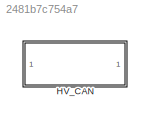
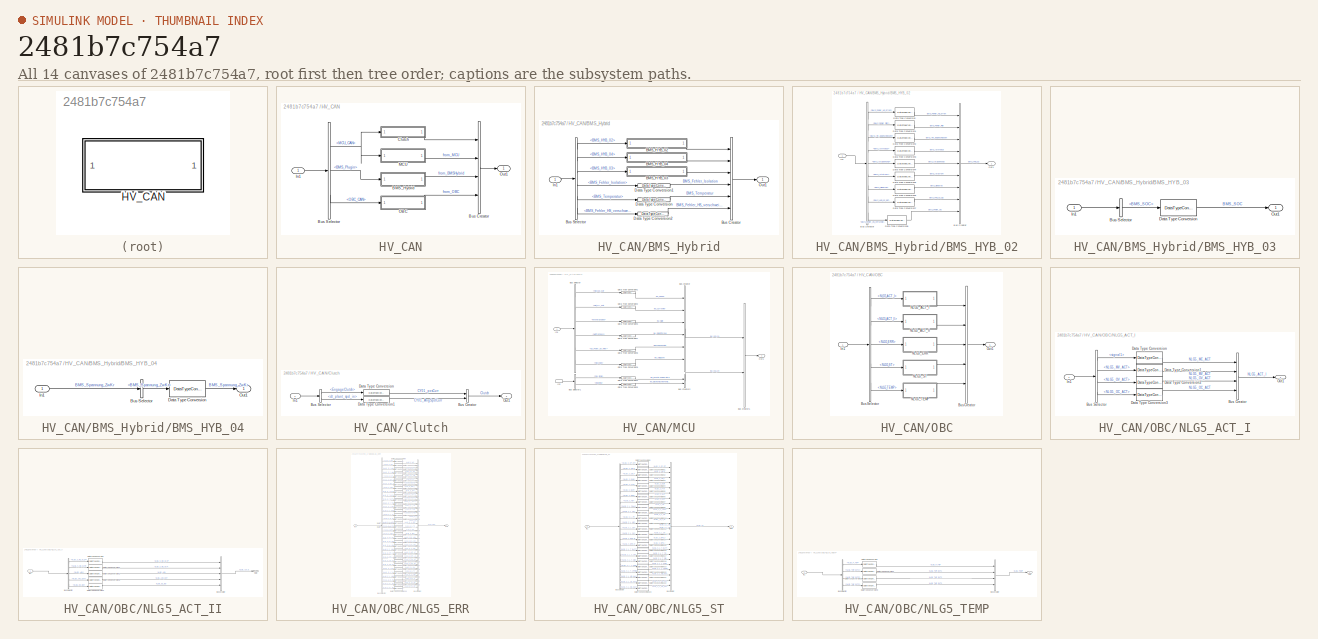
[diagram: thumbnail index - all 14 canvases of the model, root first then tree order]
MODEL slx_2481b7c754a7
KIND library
CONFIG AbsTol = auto
CONFIG EnableMultiTasking = off
CONFIG FixedStep = auto
CONFIG MaxStep = auto
CONFIG MinStep = auto
CONFIG RelTol = 1e-3
CONFIG SampleTimeConstraint = Unconstrained
CONFIG Solver = VariableStepAuto
CONFIG SolverName = VariableStepAuto
CONFIG StartTime = 0.0
CONFIG StopTime = 10.0
BLOCK [SubSystem] HV_CAN
  Ports = [1, 1]
  RequestExecContextInheritance = off
  Variant = off
BLOCK [SubSystem] HV_CAN/BMS_Hybrid
  Ports = [1, 1]
  RequestExecContextInheritance = off
  Variant = off
BLOCK [SubSystem] HV_CAN/BMS_Hybrid/BMS_HYB_02
  Ports = [1, 1]
  RequestExecContextInheritance = off
  Variant = off
BLOCK [BusCreator] HV_CAN/BMS_Hybrid/BMS_HYB_02/Bus Creator
  DisplayOption = bar
  InheritFromInputs = on
  Inputs = 9
  Ports = [9, 1]
BLOCK [BusSelector] HV_CAN/BMS_Hybrid/BMS_HYB_02/Bus Selector
  OutputAsBus = off
  OutputSignals = BMS_Fehler_HS_offen,BMS_Fehler_Pilot,BMS_Init_abgeschlossen,BMS_IstModus,BMS_IstSpannung,BMS_IstStrom,BMS_SleepInd,BMS_HYB_02_BZ,BMS_Fehler_HS_verschweisst
  Ports = [1, 9]
BLOCK [DataTypeConversion] HV_CAN/BMS_Hybrid/BMS_HYB_02/Data Type Conversion
  RndMeth = Floor
  SaturateOnIntegerOverflow = off
BLOCK [DataTypeConversion] HV_CAN/BMS_Hybrid/BMS_HYB_02/Data Type Conversion1
  RndMeth = Floor
  SaturateOnIntegerOverflow = off
BLOCK [DataTypeConversion] HV_CAN/BMS_Hybrid/BMS_HYB_02/Data Type Conversion2
  RndMeth = Floor
  SaturateOnIntegerOverflow = off
BLOCK [DataTypeConversion] HV_CAN/BMS_Hybrid/BMS_HYB_02/Data Type Conversion3
  RndMeth = Floor
  SaturateOnIntegerOverflow = off
BLOCK [DataTypeConversion] HV_CAN/BMS_Hybrid/BMS_HYB_02/Data Type Conversion4
  RndMeth = Floor
  SaturateOnIntegerOverflow = off
BLOCK [DataTypeConversion] HV_CAN/BMS_Hybrid/BMS_HYB_02/Data Type Conversion5
  RndMeth = Floor
  SaturateOnIntegerOverflow = off
BLOCK [DataTypeConversion] HV_CAN/BMS_Hybrid/BMS_HYB_02/Data Type Conversion6
  RndMeth = Floor
  SaturateOnIntegerOverflow = off
BLOCK [DataTypeConversion] HV_CAN/BMS_Hybrid/BMS_HYB_02/Data Type Conversion7
  RndMeth = Floor
  SaturateOnIntegerOverflow = off
BLOCK [DataTypeConversion] HV_CAN/BMS_Hybrid/BMS_HYB_02/Data Type Conversion8
  RndMeth = Floor
  SaturateOnIntegerOverflow = off
BLOCK [Inport] HV_CAN/BMS_Hybrid/BMS_HYB_02/In1
  IconDisplay = Port number
BLOCK [Outport] HV_CAN/BMS_Hybrid/BMS_HYB_02/Out1
  IconDisplay = Port number
BLOCK [SubSystem] HV_CAN/BMS_Hybrid/BMS_HYB_03
  Ports = [1, 1]
  RequestExecContextInheritance = off
  Variant = off
BLOCK [BusSelector] HV_CAN/BMS_Hybrid/BMS_HYB_03/Bus Selector
  OutputAsBus = off
  OutputSignals = BMS_SOC
  Ports = [1, 1]
BLOCK [DataTypeConversion] HV_CAN/BMS_Hybrid/BMS_HYB_03/Data Type Conversion
  RndMeth = Floor
  SaturateOnIntegerOverflow = off
BLOCK [Inport] HV_CAN/BMS_Hybrid/BMS_HYB_03/In1
  IconDisplay = Port number
BLOCK [Outport] HV_CAN/BMS_Hybrid/BMS_HYB_03/Out1
  IconDisplay = Port number
BLOCK [SubSystem] HV_CAN/BMS_Hybrid/BMS_HYB_04
  Ports = [1, 1]
  RequestExecContextInheritance = off
  Variant = off
BLOCK [BusSelector] HV_CAN/BMS_Hybrid/BMS_HYB_04/Bus Selector
  OutputAsBus = off
  OutputSignals = BMS_Spannung_ZwKr
  Ports = [1, 1]
BLOCK [DataTypeConversion] HV_CAN/BMS_Hybrid/BMS_HYB_04/Data Type Conversion
  RndMeth = Floor
  SaturateOnIntegerOverflow = off
BLOCK [Inport] HV_CAN/BMS_Hybrid/BMS_HYB_04/In1
  IconDisplay = Port number
BLOCK [Outport] HV_CAN/BMS_Hybrid/BMS_HYB_04/Out1
  IconDisplay = Port number
BLOCK [BusCreator] HV_CAN/BMS_Hybrid/Bus Creator
  DisplayOption = bar
  InheritFromInputs = on
  Inputs = 6
  Ports = [6, 1]
BLOCK [BusSelector] HV_CAN/BMS_Hybrid/Bus Selector
  OutputAsBus = off
  OutputSignals = BMS_HYB_02,BMS_HYB_04,BMS_HYB_03,BMS_HYB_02.BMS_Fehler_Isolation,BMS_HYB_06.BMS_Temperatur,BMS_HYB_02.BMS_Fehler_HS_verschweisst
  Ports = [1, 6]
BLOCK [DataTypeConversion] HV_CAN/BMS_Hybrid/Data Type Conversion
  RndMeth = Floor
  SaturateOnIntegerOverflow = off
BLOCK [DataTypeConversion] HV_CAN/BMS_Hybrid/Data Type Conversion1
  RndMeth = Floor
  SaturateOnIntegerOverflow = off
BLOCK [DataTypeConversion] HV_CAN/BMS_Hybrid/Data Type Conversion2
  RndMeth = Floor
  SaturateOnIntegerOverflow = off
BLOCK [Inport] HV_CAN/BMS_Hybrid/In1
  IconDisplay = Port number
BLOCK [Outport] HV_CAN/BMS_Hybrid/Out1
  IconDisplay = Port number
BLOCK [BusCreator] HV_CAN/Bus Creator
  DisplayOption = bar
  InheritFromInputs = on
  Inputs = 4
  Ports = [4, 1]
BLOCK [BusSelector] HV_CAN/Bus Selector
  OutputAsBus = off
  OutputSignals = MCU_CAN,BMS_CAN.BMS_Plugin,OBC_CAN
  Ports = [1, 3]
BLOCK [SubSystem] HV_CAN/Clutch
  Ports = [1, 1]
  RequestExecContextInheritance = off
  Variant = off
BLOCK [BusCreator] HV_CAN/Clutch/Bus Creator
  DisplayOption = bar
  InheritFromInputs = on
  Inputs = 2
  Ports = [2, 1]
BLOCK [BusSelector] HV_CAN/Clutch/Bus Selector
  OutputAsBus = off
  OutputSignals = MCU_to _Actuator.EngageClutch,Sensors_to_MCU.clt_plant_spd_in
  Ports = [1, 2]
BLOCK [DataTypeConversion] HV_CAN/Clutch/Data Type Conversion
  RndMeth = Floor
  SaturateOnIntegerOverflow = off
BLOCK [DataTypeConversion] HV_CAN/Clutch/Data Type Conversion1
  RndMeth = Floor
  SaturateOnIntegerOverflow = off
BLOCK [Inport] HV_CAN/Clutch/In1
  IconDisplay = Port number
BLOCK [Outport] HV_CAN/Clutch/Out1
  IconDisplay = Port number
BLOCK [Inport] HV_CAN/In1
  IconDisplay = Port number
BLOCK [SubSystem] HV_CAN/MCU
  Ports = [1, 1]
  RequestExecContextInheritance = off
  Variant = off
BLOCK [BusCreator] HV_CAN/MCU/Bus Creator
  DisplayOption = bar
  InheritFromInputs = on
  Inputs = 6
  Ports = [6, 1]
BLOCK [BusCreator] HV_CAN/MCU/Bus Creator1
  DisplayOption = bar
  InheritFromInputs = on
  Inputs = 2
  Ports = [2, 1]
BLOCK [BusCreator] HV_CAN/MCU/Bus Creator2
  DisplayOption = bar
  InheritFromInputs = on
  Inputs = 2
  Ports = [2, 1]
BLOCK [BusSelector] HV_CAN/MCU/Bus Selector
  OutputAsBus = off
  OutputSignals = Sensors_to_MCU.mot_spd_out,Sensors_to_MCU.mot_crr_out,MCU_to _Actuator.InverterEnabled,MCU_to _Actuator.MotTrqFdbck,MCU_to _Actuator.D3_Power_On_Timer,Sensors_to_MCU.mot_volt_in
  Ports = [1, 6]
BLOCK [BusSelector] HV_CAN/MCU/Bus Selector1
  OutputAsBus = off
  OutputSignals = Sensors_to_MCU.mcu_temp,Sensors_to_MCU.mot_temp
  Ports = [1, 2]
BLOCK [DataTypeConversion] HV_CAN/MCU/Data Type Conversion1
  RndMeth = Floor
  SaturateOnIntegerOverflow = off
BLOCK [DataTypeConversion] HV_CAN/MCU/Data Type Conversion2
  RndMeth = Floor
  SaturateOnIntegerOverflow = off
BLOCK [DataTypeConversion] HV_CAN/MCU/Data Type Conversion3
  RndMeth = Floor
  SaturateOnIntegerOverflow = off
BLOCK [DataTypeConversion] HV_CAN/MCU/Data Type Conversion4
  RndMeth = Floor
  SaturateOnIntegerOverflow = off
BLOCK [DataTypeConversion] HV_CAN/MCU/Data Type Conversion5
  RndMeth = Floor
  SaturateOnIntegerOverflow = off
BLOCK [DataTypeConversion] HV_CAN/MCU/Data Type Conversion7
  RndMeth = Floor
  SaturateOnIntegerOverflow = off
BLOCK [DataTypeConversion] HV_CAN/MCU/Data Type Conversion8
  RndMeth = Floor
  SaturateOnIntegerOverflow = off
BLOCK [DataTypeConversion] HV_CAN/MCU/Data Type Conversion9
  RndMeth = Floor
  SaturateOnIntegerOverflow = off
BLOCK [Inport] HV_CAN/MCU/In1
  IconDisplay = Port number
BLOCK [InportShadow] HV_CAN/MCU/In2
  IconDisplay = Port number
BLOCK [Outport] HV_CAN/MCU/Out1
  IconDisplay = Port number
BLOCK [SubSystem] HV_CAN/OBC
  Ports = [1, 1]
  RequestExecContextInheritance = off
  Variant = off
BLOCK [BusCreator] HV_CAN/OBC/Bus Creator
  DisplayOption = bar
  InheritFromInputs = on
  Inputs = 5
  Ports = [5, 1]
BLOCK [BusSelector] HV_CAN/OBC/Bus Selector
  OutputAsBus = off
  OutputSignals = NLG5_ACT_I,NLG5_ACT_II,NLG5_ERR,NLG5_ST,NLG5_TEMP
  Ports = [1, 5]
BLOCK [Inport] HV_CAN/OBC/In1
  IconDisplay = Port number
BLOCK [SubSystem] HV_CAN/OBC/NLG5_ACT_I
  Ports = [1, 1]
  RequestExecContextInheritance = off
  Variant = off
BLOCK [BusCreator] HV_CAN/OBC/NLG5_ACT_I/Bus Creator
  DisplayOption = bar
  InheritFromInputs = on
  Inputs = 4
  Ports = [4, 1]
BLOCK [BusSelector] HV_CAN/OBC/NLG5_ACT_I/Bus Selector
  OutputAsBus = off
  OutputSignals = signal1,NLG5_MV_ACT,NLG5_OV_ACT,NLG5_OC_ACT
  Ports = [1, 4]
BLOCK [DataTypeConversion] HV_CAN/OBC/NLG5_ACT_I/Data Type Conversion
  RndMeth = Floor
  SaturateOnIntegerOverflow = off
BLOCK [DataTypeConversion] HV_CAN/OBC/NLG5_ACT_I/Data Type Conversion1
  RndMeth = Floor
  SaturateOnIntegerOverflow = off
BLOCK [DataTypeConversion] HV_CAN/OBC/NLG5_ACT_I/Data Type Conversion2
  RndMeth = Floor
  SaturateOnIntegerOverflow = off
BLOCK [DataTypeConversion] HV_CAN/OBC/NLG5_ACT_I/Data Type Conversion3
  RndMeth = Floor
  SaturateOnIntegerOverflow = off
BLOCK [Inport] HV_CAN/OBC/NLG5_ACT_I/In1
  IconDisplay = Port number
BLOCK [Outport] HV_CAN/OBC/NLG5_ACT_I/Out1
  IconDisplay = Port number
BLOCK [SubSystem] HV_CAN/OBC/NLG5_ACT_II
  Ports = [1, 1]
  RequestExecContextInheritance = off
  Variant = off
BLOCK [BusCreator] HV_CAN/OBC/NLG5_ACT_II/Bus Creator
  DisplayOption = bar
  InheritFromInputs = on
  Inputs = 5
  Ports = [5, 1]
BLOCK [BusSelector] HV_CAN/OBC/NLG5_ACT_II/Bus Selector
  OutputAsBus = off
  OutputSignals = NLG5_S_MC_M_CP,NLG5_S_MC_M_PI,NLG5_ABV,NLG5_AHC_EXT,NLG5_OC_BO
  Ports = [1, 5]
BLOCK [DataTypeConversion] HV_CAN/OBC/NLG5_ACT_II/Data Type Conversion
  RndMeth = Floor
  SaturateOnIntegerOverflow = off
BLOCK [DataTypeConversion] HV_CAN/OBC/NLG5_ACT_II/Data Type Conversion1
  RndMeth = Floor
  SaturateOnIntegerOverflow = off
BLOCK [DataTypeConversion] HV_CAN/OBC/NLG5_ACT_II/Data Type Conversion2
  RndMeth = Floor
  SaturateOnIntegerOverflow = off
BLOCK [DataTypeConversion] HV_CAN/OBC/NLG5_ACT_II/Data Type Conversion3
  RndMeth = Floor
  SaturateOnIntegerOverflow = off
BLOCK [DataTypeConversion] HV_CAN/OBC/NLG5_ACT_II/Data Type Conversion4
  RndMeth = Floor
  SaturateOnIntegerOverflow = off
BLOCK [Inport] HV_CAN/OBC/NLG5_ACT_II/In1
  IconDisplay = Port number
BLOCK [Outport] HV_CAN/OBC/NLG5_ACT_II/Out1
  IconDisplay = Port number
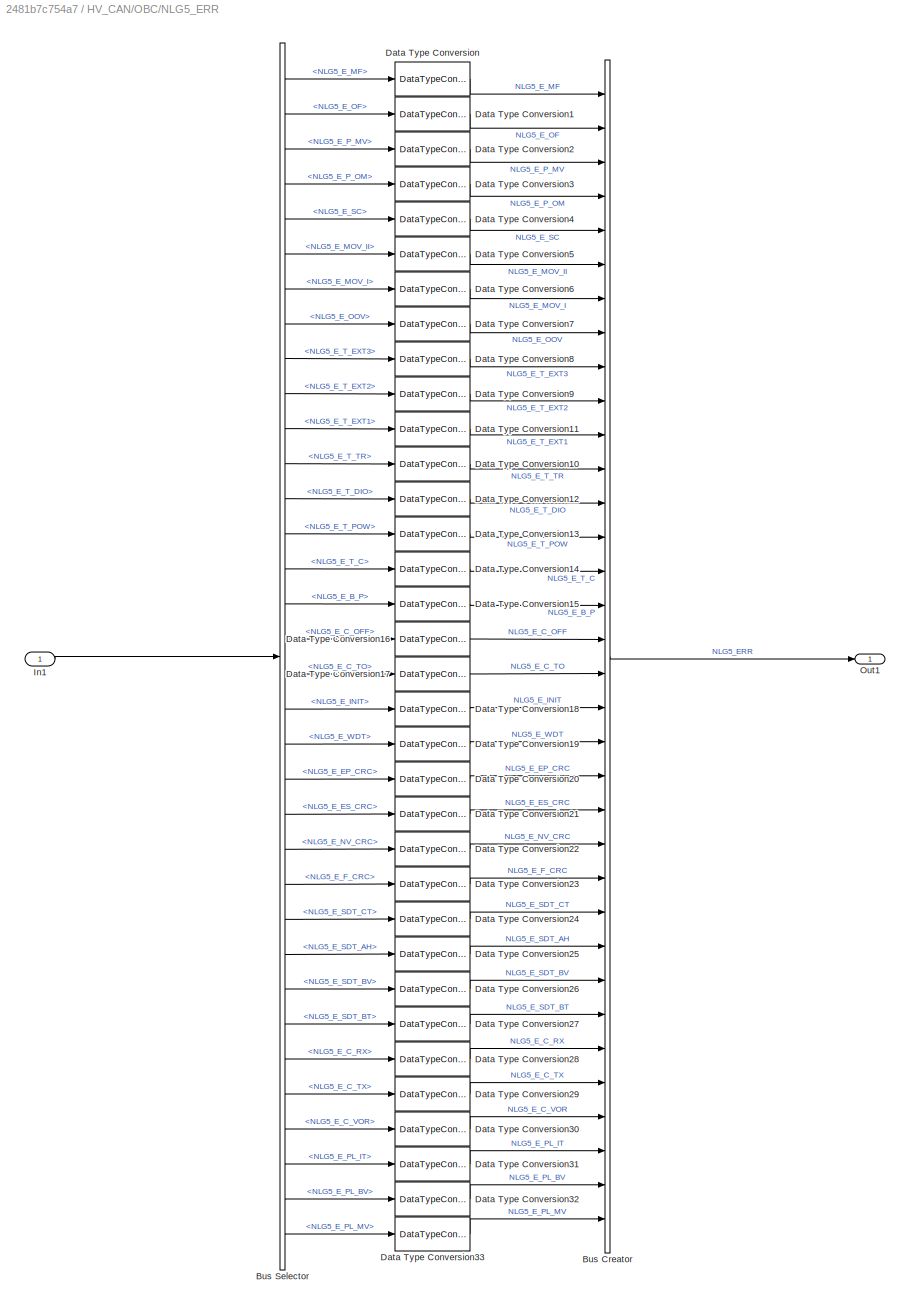
BLOCK [SubSystem] HV_CAN/OBC/NLG5_ERR
  Ports = [1, 1]
  RequestExecContextInheritance = off
  Variant = off
BLOCK [BusCreator] HV_CAN/OBC/NLG5_ERR/Bus Creator
  DisplayOption = bar
  InheritFromInputs = on
  Inputs = 34
  Ports = [34, 1]
BLOCK [BusSelector] HV_CAN/OBC/NLG5_ERR/Bus Selector
  OutputAsBus = off
  OutputSignals = NLG5_E_MF,NLG5_E_OF,NLG5_E_P_MV,NLG5_E_P_OM,NLG5_E_SC,NLG5_E_MOV_II,NLG5_E_MOV_I,NLG5_E_OOV,NLG5_E_T_EXT3,NLG5_E_T_EXT2,NLG5_E_T_EXT1,NLG5_E_T_TR,NLG5_E_T_DIO,NLG5_E_T_POW,NLG5_E_T_C,NLG5_E_B_P,NLG5_E_C_OFF,NLG5_E_C_TO,NLG5_E_INIT,NLG5_E_WDT,NLG5_E_EP_CRC,NLG5_E_ES_CRC,NLG5_E_NV_CRC,NLG5_E_F_CRC,NLG5_E_SDT_CT,NLG5_E_SDT_AH,NLG5_E_SDT_BV,NLG5_E_SDT_BT,NLG5_E_C_RX,NLG5_E_C_TX,NLG5_E_C_VOR,NLG5_E_PL_...<+28ch>
  Ports = [1, 34]
BLOCK [DataTypeConversion] HV_CAN/OBC/NLG5_ERR/Data Type Conversion
  RndMeth = Floor
  SaturateOnIntegerOverflow = off
BLOCK [DataTypeConversion] HV_CAN/OBC/NLG5_ERR/Data Type Conversion1
  RndMeth = Floor
  SaturateOnIntegerOverflow = off
BLOCK [DataTypeConversion] HV_CAN/OBC/NLG5_ERR/Data Type Conversion10
  RndMeth = Floor
  SaturateOnIntegerOverflow = off
BLOCK [DataTypeConversion] HV_CAN/OBC/NLG5_ERR/Data Type Conversion11
  RndMeth = Floor
  SaturateOnIntegerOverflow = off
BLOCK [DataTypeConversion] HV_CAN/OBC/NLG5_ERR/Data Type Conversion12
  RndMeth = Floor
  SaturateOnIntegerOverflow = off
BLOCK [DataTypeConversion] HV_CAN/OBC/NLG5_ERR/Data Type Conversion13
  RndMeth = Floor
  SaturateOnIntegerOverflow = off
BLOCK [DataTypeConversion] HV_CAN/OBC/NLG5_ERR/Data Type Conversion14
  RndMeth = Floor
  SaturateOnIntegerOverflow = off
BLOCK [DataTypeConversion] HV_CAN/OBC/NLG5_ERR/Data Type Conversion15
  RndMeth = Floor
  SaturateOnIntegerOverflow = off
BLOCK [DataTypeConversion] HV_CAN/OBC/NLG5_ERR/Data Type Conversion16
  RndMeth = Floor
  SaturateOnIntegerOverflow = off
BLOCK [DataTypeConversion] HV_CAN/OBC/NLG5_ERR/Data Type Conversion17
  RndMeth = Floor
  SaturateOnIntegerOverflow = off
BLOCK [DataTypeConversion] HV_CAN/OBC/NLG5_ERR/Data Type Conversion18
  RndMeth = Floor
  SaturateOnIntegerOverflow = off
BLOCK [DataTypeConversion] HV_CAN/OBC/NLG5_ERR/Data Type Conversion19
  RndMeth = Floor
  SaturateOnIntegerOverflow = off
BLOCK [DataTypeConversion] HV_CAN/OBC/NLG5_ERR/Data Type Conversion2
  RndMeth = Floor
  SaturateOnIntegerOverflow = off
BLOCK [DataTypeConversion] HV_CAN/OBC/NLG5_ERR/Data Type Conversion20
  RndMeth = Floor
  SaturateOnIntegerOverflow = off
BLOCK [DataTypeConversion] HV_CAN/OBC/NLG5_ERR/Data Type Conversion21
  RndMeth = Floor
  SaturateOnIntegerOverflow = off
BLOCK [DataTypeConversion] HV_CAN/OBC/NLG5_ERR/Data Type Conversion22
  RndMeth = Floor
  SaturateOnIntegerOverflow = off
BLOCK [DataTypeConversion] HV_CAN/OBC/NLG5_ERR/Data Type Conversion23
  RndMeth = Floor
  SaturateOnIntegerOverflow = off
BLOCK [DataTypeConversion] HV_CAN/OBC/NLG5_ERR/Data Type Conversion24
  RndMeth = Floor
  SaturateOnIntegerOverflow = off
BLOCK [DataTypeConversion] HV_CAN/OBC/NLG5_ERR/Data Type Conversion25
  RndMeth = Floor
  SaturateOnIntegerOverflow = off
BLOCK [DataTypeConversion] HV_CAN/OBC/NLG5_ERR/Data Type Conversion26
  RndMeth = Floor
  SaturateOnIntegerOverflow = off
BLOCK [DataTypeConversion] HV_CAN/OBC/NLG5_ERR/Data Type Conversion27
  RndMeth = Floor
  SaturateOnIntegerOverflow = off
BLOCK [DataTypeConversion] HV_CAN/OBC/NLG5_ERR/Data Type Conversion28
  RndMeth = Floor
  SaturateOnIntegerOverflow = off
BLOCK [DataTypeConversion] HV_CAN/OBC/NLG5_ERR/Data Type Conversion29
  RndMeth = Floor
  SaturateOnIntegerOverflow = off
BLOCK [DataTypeConversion] HV_CAN/OBC/NLG5_ERR/Data Type Conversion3
  RndMeth = Floor
  SaturateOnIntegerOverflow = off
BLOCK [DataTypeConversion] HV_CAN/OBC/NLG5_ERR/Data Type Conversion30
  RndMeth = Floor
  SaturateOnIntegerOverflow = off
BLOCK [DataTypeConversion] HV_CAN/OBC/NLG5_ERR/Data Type Conversion31
  RndMeth = Floor
  SaturateOnIntegerOverflow = off
BLOCK [DataTypeConversion] HV_CAN/OBC/NLG5_ERR/Data Type Conversion32
  RndMeth = Floor
  SaturateOnIntegerOverflow = off
BLOCK [DataTypeConversion] HV_CAN/OBC/NLG5_ERR/Data Type Conversion33
  RndMeth = Floor
  SaturateOnIntegerOverflow = off
BLOCK [DataTypeConversion] HV_CAN/OBC/NLG5_ERR/Data Type Conversion4
  RndMeth = Floor
  SaturateOnIntegerOverflow = off
BLOCK [DataTypeConversion] HV_CAN/OBC/NLG5_ERR/Data Type Conversion5
  RndMeth = Floor
  SaturateOnIntegerOverflow = off
BLOCK [DataTypeConversion] HV_CAN/OBC/NLG5_ERR/Data Type Conversion6
  RndMeth = Floor
  SaturateOnIntegerOverflow = off
BLOCK [DataTypeConversion] HV_CAN/OBC/NLG5_ERR/Data Type Conversion7
  RndMeth = Floor
  SaturateOnIntegerOverflow = off
BLOCK [DataTypeConversion] HV_CAN/OBC/NLG5_ERR/Data Type Conversion8
  RndMeth = Floor
  SaturateOnIntegerOverflow = off
BLOCK [DataTypeConversion] HV_CAN/OBC/NLG5_ERR/Data Type Conversion9
  RndMeth = Floor
  SaturateOnIntegerOverflow = off
BLOCK [Inport] HV_CAN/OBC/NLG5_ERR/In1
  IconDisplay = Port number
BLOCK [Outport] HV_CAN/OBC/NLG5_ERR/Out1
  IconDisplay = Port number
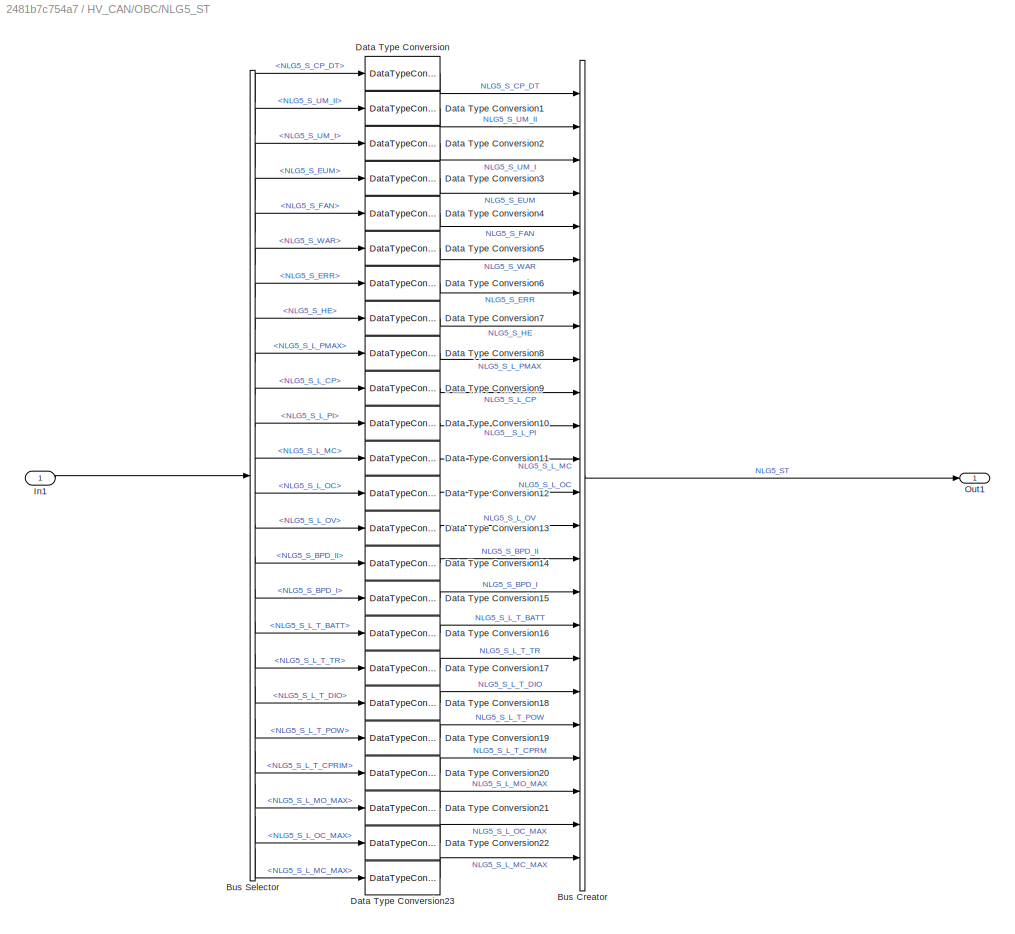
BLOCK [SubSystem] HV_CAN/OBC/NLG5_ST
  Ports = [1, 1]
  RequestExecContextInheritance = off
  Variant = off
BLOCK [BusCreator] HV_CAN/OBC/NLG5_ST/Bus Creator
  DisplayOption = bar
  InheritFromInputs = on
  Inputs = 24
  Ports = [24, 1]
BLOCK [BusSelector] HV_CAN/OBC/NLG5_ST/Bus Selector
  OutputAsBus = off
  OutputSignals = NLG5_S_CP_DT,NLG5_S_UM_II,NLG5_S_UM_I,NLG5_S_EUM,NLG5_S_FAN,NLG5_S_WAR,NLG5_S_ERR,NLG5_S_HE,NLG5_S_L_PMAX,NLG5_S_L_CP,NLG5_S_L_PI,NLG5_S_L_MC,NLG5_S_L_OC,NLG5_S_L_OV,NLG5_S_BPD_II,NLG5_S_BPD_I,NLG5_S_L_T_BATT,NLG5_S_L_T_TR,NLG5_S_L_T_DIO,NLG5_S_L_T_POW,NLG5_S_L_T_CPRIM,NLG5_S_L_MO_MAX,NLG5_S_L_OC_MAX,NLG5_S_L_MC_MAX
  Ports = [1, 24]
BLOCK [DataTypeConversion] HV_CAN/OBC/NLG5_ST/Data Type Conversion
  RndMeth = Floor
  SaturateOnIntegerOverflow = off
BLOCK [DataTypeConversion] HV_CAN/OBC/NLG5_ST/Data Type Conversion1
  RndMeth = Floor
  SaturateOnIntegerOverflow = off
BLOCK [DataTypeConversion] HV_CAN/OBC/NLG5_ST/Data Type Conversion10
  RndMeth = Floor
  SaturateOnIntegerOverflow = off
BLOCK [DataTypeConversion] HV_CAN/OBC/NLG5_ST/Data Type Conversion11
  RndMeth = Floor
  SaturateOnIntegerOverflow = off
BLOCK [DataTypeConversion] HV_CAN/OBC/NLG5_ST/Data Type Conversion12
  RndMeth = Floor
  SaturateOnIntegerOverflow = off
BLOCK [DataTypeConversion] HV_CAN/OBC/NLG5_ST/Data Type Conversion13
  RndMeth = Floor
  SaturateOnIntegerOverflow = off
BLOCK [DataTypeConversion] HV_CAN/OBC/NLG5_ST/Data Type Conversion14
  RndMeth = Floor
  SaturateOnIntegerOverflow = off
BLOCK [DataTypeConversion] HV_CAN/OBC/NLG5_ST/Data Type Conversion15
  RndMeth = Floor
  SaturateOnIntegerOverflow = off
BLOCK [DataTypeConversion] HV_CAN/OBC/NLG5_ST/Data Type Conversion16
  RndMeth = Floor
  SaturateOnIntegerOverflow = off
BLOCK [DataTypeConversion] HV_CAN/OBC/NLG5_ST/Data Type Conversion17
  RndMeth = Floor
  SaturateOnIntegerOverflow = off
BLOCK [DataTypeConversion] HV_CAN/OBC/NLG5_ST/Data Type Conversion18
  RndMeth = Floor
  SaturateOnIntegerOverflow = off
BLOCK [DataTypeConversion] HV_CAN/OBC/NLG5_ST/Data Type Conversion19
  RndMeth = Floor
  SaturateOnIntegerOverflow = off
BLOCK [DataTypeConversion] HV_CAN/OBC/NLG5_ST/Data Type Conversion2
  RndMeth = Floor
  SaturateOnIntegerOverflow = off
BLOCK [DataTypeConversion] HV_CAN/OBC/NLG5_ST/Data Type Conversion20
  RndMeth = Floor
  SaturateOnIntegerOverflow = off
BLOCK [DataTypeConversion] HV_CAN/OBC/NLG5_ST/Data Type Conversion21
  RndMeth = Floor
  SaturateOnIntegerOverflow = off
BLOCK [DataTypeConversion] HV_CAN/OBC/NLG5_ST/Data Type Conversion22
  RndMeth = Floor
  SaturateOnIntegerOverflow = off
BLOCK [DataTypeConversion] HV_CAN/OBC/NLG5_ST/Data Type Conversion23
  RndMeth = Floor
  SaturateOnIntegerOverflow = off
BLOCK [DataTypeConversion] HV_CAN/OBC/NLG5_ST/Data Type Conversion3
  RndMeth = Floor
  SaturateOnIntegerOverflow = off
BLOCK [DataTypeConversion] HV_CAN/OBC/NLG5_ST/Data Type Conversion4
  RndMeth = Floor
  SaturateOnIntegerOverflow = off
BLOCK [DataTypeConversion] HV_CAN/OBC/NLG5_ST/Data Type Conversion5
  RndMeth = Floor
  SaturateOnIntegerOverflow = off
BLOCK [DataTypeConversion] HV_CAN/OBC/NLG5_ST/Data Type Conversion6
  RndMeth = Floor
  SaturateOnIntegerOverflow = off
BLOCK [DataTypeConversion] HV_CAN/OBC/NLG5_ST/Data Type Conversion7
  RndMeth = Floor
  SaturateOnIntegerOverflow = off
BLOCK [DataTypeConversion] HV_CAN/OBC/NLG5_ST/Data Type Conversion8
  RndMeth = Floor
  SaturateOnIntegerOverflow = off
BLOCK [DataTypeConversion] HV_CAN/OBC/NLG5_ST/Data Type Conversion9
  RndMeth = Floor
  SaturateOnIntegerOverflow = off
BLOCK [Inport] HV_CAN/OBC/NLG5_ST/In1
  IconDisplay = Port number
BLOCK [Outport] HV_CAN/OBC/NLG5_ST/Out1
  IconDisplay = Port number
BLOCK [SubSystem] HV_CAN/OBC/NLG5_TEMP
  Ports = [1, 1]
  RequestExecContextInheritance = off
  Variant = off
BLOCK [BusCreator] HV_CAN/OBC/NLG5_TEMP/Bus Creator
  DisplayOption = bar
  InheritFromInputs = on
  Inputs = 4
  Ports = [4, 1]
BLOCK [BusSelector] HV_CAN/OBC/NLG5_TEMP/Bus Selector
  OutputAsBus = off
  OutputSignals = NLG5_P_TMP,NLG5_TMP_EXT1,NLG5_TMP_EXT2,NLG5_TMP_EXT3
  Ports = [1, 4]
BLOCK [DataTypeConversion] HV_CAN/OBC/NLG5_TEMP/Data Type Conversion
  RndMeth = Floor
  SaturateOnIntegerOverflow = off
BLOCK [DataTypeConversion] HV_CAN/OBC/NLG5_TEMP/Data Type Conversion1
  RndMeth = Floor
  SaturateOnIntegerOverflow = off
BLOCK [DataTypeConversion] HV_CAN/OBC/NLG5_TEMP/Data Type Conversion2
  RndMeth = Floor
  SaturateOnIntegerOverflow = off
BLOCK [DataTypeConversion] HV_CAN/OBC/NLG5_TEMP/Data Type Conversion3
  RndMeth = Floor
  SaturateOnIntegerOverflow = off
BLOCK [Inport] HV_CAN/OBC/NLG5_TEMP/In1
  IconDisplay = Port number
BLOCK [Outport] HV_CAN/OBC/NLG5_TEMP/Out1
  IconDisplay = Port number
BLOCK [Outport] HV_CAN/OBC/Out1
  IconDisplay = Port number
BLOCK [Outport] HV_CAN/Out1
  IconDisplay = Port number
LINE HV_CAN/BMS_Hybrid/BMS_HYB_02/Bus Creator:1 -> HV_CAN/BMS_Hybrid/BMS_HYB_02/Out1:1
LINE HV_CAN/BMS_Hybrid/BMS_HYB_02/Bus Selector:1 -> HV_CAN/BMS_Hybrid/BMS_HYB_02/Data Type Conversion:1
LINE HV_CAN/BMS_Hybrid/BMS_HYB_02/Bus Selector:2 -> HV_CAN/BMS_Hybrid/BMS_HYB_02/Data Type Conversion1:1
LINE HV_CAN/BMS_Hybrid/BMS_HYB_02/Bus Selector:3 -> HV_CAN/BMS_Hybrid/BMS_HYB_02/Data Type Conversion2:1
LINE HV_CAN/BMS_Hybrid/BMS_HYB_02/Bus Selector:4 -> HV_CAN/BMS_Hybrid/BMS_HYB_02/Data Type Conversion3:1
LINE HV_CAN/BMS_Hybrid/BMS_HYB_02/Bus Selector:5 -> HV_CAN/BMS_Hybrid/BMS_HYB_02/Data Type Conversion4:1
LINE HV_CAN/BMS_Hybrid/BMS_HYB_02/Bus Selector:6 -> HV_CAN/BMS_Hybrid/BMS_HYB_02/Data Type Conversion5:1
LINE HV_CAN/BMS_Hybrid/BMS_HYB_02/Bus Selector:7 -> HV_CAN/BMS_Hybrid/BMS_HYB_02/Data Type Conversion6:1
LINE HV_CAN/BMS_Hybrid/BMS_HYB_02/Bus Selector:8 -> HV_CAN/BMS_Hybrid/BMS_HYB_02/Data Type Conversion7:1
LINE HV_CAN/BMS_Hybrid/BMS_HYB_02/Bus Selector:9 -> HV_CAN/BMS_Hybrid/BMS_HYB_02/Data Type Conversion8:1
LINE HV_CAN/BMS_Hybrid/BMS_HYB_02/Data Type Conversion1:1 -> HV_CAN/BMS_Hybrid/BMS_HYB_02/Bus Creator:2
LINE HV_CAN/BMS_Hybrid/BMS_HYB_02/Data Type Conversion2:1 -> HV_CAN/BMS_Hybrid/BMS_HYB_02/Bus Creator:3
LINE HV_CAN/BMS_Hybrid/BMS_HYB_02/Data Type Conversion3:1 -> HV_CAN/BMS_Hybrid/BMS_HYB_02/Bus Creator:4
LINE HV_CAN/BMS_Hybrid/BMS_HYB_02/Data Type Conversion4:1 -> HV_CAN/BMS_Hybrid/BMS_HYB_02/Bus Creator:5
LINE HV_CAN/BMS_Hybrid/BMS_HYB_02/Data Type Conversion5:1 -> HV_CAN/BMS_Hybrid/BMS_HYB_02/Bus Creator:6
LINE HV_CAN/BMS_Hybrid/BMS_HYB_02/Data Type Conversion6:1 -> HV_CAN/BMS_Hybrid/BMS_HYB_02/Bus Creator:7
LINE HV_CAN/BMS_Hybrid/BMS_HYB_02/Data Type Conversion7:1 -> HV_CAN/BMS_Hybrid/BMS_HYB_02/Bus Creator:8
LINE HV_CAN/BMS_Hybrid/BMS_HYB_02/Data Type Conversion8:1 -> HV_CAN/BMS_Hybrid/BMS_HYB_02/Bus Creator:9
LINE HV_CAN/BMS_Hybrid/BMS_HYB_02/Data Type Conversion:1 -> HV_CAN/BMS_Hybrid/BMS_HYB_02/Bus Creator:1
LINE HV_CAN/BMS_Hybrid/BMS_HYB_02/In1:1 -> HV_CAN/BMS_Hybrid/BMS_HYB_02/Bus Selector:1
LINE HV_CAN/BMS_Hybrid/BMS_HYB_02:1 -> HV_CAN/BMS_Hybrid/Bus Creator:1
LINE HV_CAN/BMS_Hybrid/BMS_HYB_03/Bus Selector:1 -> HV_CAN/BMS_Hybrid/BMS_HYB_03/Data Type Conversion:1
LINE HV_CAN/BMS_Hybrid/BMS_HYB_03/Data Type Conversion:1 -> HV_CAN/BMS_Hybrid/BMS_HYB_03/Out1:1
LINE HV_CAN/BMS_Hybrid/BMS_HYB_03/In1:1 -> HV_CAN/BMS_Hybrid/BMS_HYB_03/Bus Selector:1
LINE HV_CAN/BMS_Hybrid/BMS_HYB_03:1 -> HV_CAN/BMS_Hybrid/Bus Creator:3
LINE HV_CAN/BMS_Hybrid/BMS_HYB_04/Bus Selector:1 -> HV_CAN/BMS_Hybrid/BMS_HYB_04/Data Type Conversion:1
LINE HV_CAN/BMS_Hybrid/BMS_HYB_04/Data Type Conversion:1 -> HV_CAN/BMS_Hybrid/BMS_HYB_04/Out1:1
LINE HV_CAN/BMS_Hybrid/BMS_HYB_04/In1:1 -> HV_CAN/BMS_Hybrid/BMS_HYB_04/Bus Selector:1
LINE HV_CAN/BMS_Hybrid/BMS_HYB_04:1 -> HV_CAN/BMS_Hybrid/Bus Creator:2
LINE HV_CAN/BMS_Hybrid/Bus Creator:1 -> HV_CAN/BMS_Hybrid/Out1:1
LINE HV_CAN/BMS_Hybrid/Bus Selector:1 -> HV_CAN/BMS_Hybrid/BMS_HYB_02:1
LINE HV_CAN/BMS_Hybrid/Bus Selector:2 -> HV_CAN/BMS_Hybrid/BMS_HYB_04:1
LINE HV_CAN/BMS_Hybrid/Bus Selector:3 -> HV_CAN/BMS_Hybrid/BMS_HYB_03:1
LINE HV_CAN/BMS_Hybrid/Bus Selector:4 -> HV_CAN/BMS_Hybrid/Data Type Conversion1:1
LINE HV_CAN/BMS_Hybrid/Bus Selector:5 -> HV_CAN/BMS_Hybrid/Data Type Conversion:1
LINE HV_CAN/BMS_Hybrid/Bus Selector:6 -> HV_CAN/BMS_Hybrid/Data Type Conversion2:1
LINE HV_CAN/BMS_Hybrid/Data Type Conversion1:1 -> HV_CAN/BMS_Hybrid/Bus Creator:4
LINE HV_CAN/BMS_Hybrid/Data Type Conversion2:1 -> HV_CAN/BMS_Hybrid/Bus Creator:6
LINE HV_CAN/BMS_Hybrid/Data Type Conversion:1 -> HV_CAN/BMS_Hybrid/Bus Creator:5
LINE HV_CAN/BMS_Hybrid/In1:1 -> HV_CAN/BMS_Hybrid/Bus Selector:1
LINE HV_CAN/BMS_Hybrid:1 -> HV_CAN/Bus Creator:3
LINE HV_CAN/Bus Creator:1 -> HV_CAN/Out1:1
NET HV_CAN/Bus Selector:1 -> HV_CAN/Clutch:1, HV_CAN/MCU:1
LINE HV_CAN/Bus Selector:2 -> HV_CAN/BMS_Hybrid:1
LINE HV_CAN/Bus Selector:3 -> HV_CAN/OBC:1
LINE HV_CAN/Clutch/Bus Creator:1 -> HV_CAN/Clutch/Out1:1
LINE HV_CAN/Clutch/Bus Selector:1 -> HV_CAN/Clutch/Data Type Conversion:1
LINE HV_CAN/Clutch/Bus Selector:2 -> HV_CAN/Clutch/Data Type Conversion1:1
LINE HV_CAN/Clutch/Data Type Conversion1:1 -> HV_CAN/Clutch/Bus Creator:2
LINE HV_CAN/Clutch/Data Type Conversion:1 -> HV_CAN/Clutch/Bus Creator:1
LINE HV_CAN/Clutch/In1:1 -> HV_CAN/Clutch/Bus Selector:1
LINE HV_CAN/Clutch:1 -> HV_CAN/Bus Creator:1
LINE HV_CAN/In1:1 -> HV_CAN/Bus Selector:1
LINE HV_CAN/MCU/Bus Creator1:1 -> HV_CAN/MCU/Out1:1
LINE HV_CAN/MCU/Bus Creator2:1 -> HV_CAN/MCU/Bus Creator1:2
LINE HV_CAN/MCU/Bus Creator:1 -> HV_CAN/MCU/Bus Creator1:1
LINE HV_CAN/MCU/Bus Selector1:1 -> HV_CAN/MCU/Data Type Conversion4:1
LINE HV_CAN/MCU/Bus Selector1:2 -> HV_CAN/MCU/Data Type Conversion5:1
LINE HV_CAN/MCU/Bus Selector:1 -> HV_CAN/MCU/Data Type Conversion1:1
LINE HV_CAN/MCU/Bus Selector:2 -> HV_CAN/MCU/Data Type Conversion2:1
LINE HV_CAN/MCU/Bus Selector:3 -> HV_CAN/MCU/Data Type Conversion3:1
LINE HV_CAN/MCU/Bus Selector:4 -> HV_CAN/MCU/Data Type Conversion7:1
LINE HV_CAN/MCU/Bus Selector:5 -> HV_CAN/MCU/Data Type Conversion8:1
LINE HV_CAN/MCU/Bus Selector:6 -> HV_CAN/MCU/Data Type Conversion9:1
LINE HV_CAN/MCU/Data Type Conversion1:1 -> HV_CAN/MCU/Bus Creator:1
LINE HV_CAN/MCU/Data Type Conversion2:1 -> HV_CAN/MCU/Bus Creator:2
LINE HV_CAN/MCU/Data Type Conversion3:1 -> HV_CAN/MCU/Bus Creator:3
LINE HV_CAN/MCU/Data Type Conversion4:1 -> HV_CAN/MCU/Bus Creator2:1
LINE HV_CAN/MCU/Data Type Conversion5:1 -> HV_CAN/MCU/Bus Creator2:2
LINE HV_CAN/MCU/Data Type Conversion7:1 -> HV_CAN/MCU/Bus Creator:4
LINE HV_CAN/MCU/Data Type Conversion8:1 -> HV_CAN/MCU/Bus Creator:5
LINE HV_CAN/MCU/Data Type Conversion9:1 -> HV_CAN/MCU/Bus Creator:6
LINE HV_CAN/MCU/In1:1 -> HV_CAN/MCU/Bus Selector:1
LINE HV_CAN/MCU/In2:1 -> HV_CAN/MCU/Bus Selector1:1
LINE HV_CAN/MCU:1 -> HV_CAN/Bus Creator:2
LINE HV_CAN/OBC/Bus Creator:1 -> HV_CAN/OBC/Out1:1
LINE HV_CAN/OBC/Bus Selector:1 -> HV_CAN/OBC/NLG5_ACT_I:1
LINE HV_CAN/OBC/Bus Selector:2 -> HV_CAN/OBC/NLG5_ACT_II:1
LINE HV_CAN/OBC/Bus Selector:3 -> HV_CAN/OBC/NLG5_ERR:1
LINE HV_CAN/OBC/Bus Selector:4 -> HV_CAN/OBC/NLG5_ST:1
LINE HV_CAN/OBC/Bus Selector:5 -> HV_CAN/OBC/NLG5_TEMP:1
LINE HV_CAN/OBC/In1:1 -> HV_CAN/OBC/Bus Selector:1
LINE HV_CAN/OBC/NLG5_ACT_I/Bus Creator:1 -> HV_CAN/OBC/NLG5_ACT_I/Out1:1
LINE HV_CAN/OBC/NLG5_ACT_I/Bus Selector:1 -> HV_CAN/OBC/NLG5_ACT_I/Data Type Conversion:1
LINE HV_CAN/OBC/NLG5_ACT_I/Bus Selector:2 -> HV_CAN/OBC/NLG5_ACT_I/Data Type Conversion1:1
LINE HV_CAN/OBC/NLG5_ACT_I/Bus Selector:3 -> HV_CAN/OBC/NLG5_ACT_I/Data Type Conversion2:1
LINE HV_CAN/OBC/NLG5_ACT_I/Bus Selector:4 -> HV_CAN/OBC/NLG5_ACT_I/Data Type Conversion3:1
LINE HV_CAN/OBC/NLG5_ACT_I/Data Type Conversion1:1 -> HV_CAN/OBC/NLG5_ACT_I/Bus Creator:2
LINE HV_CAN/OBC/NLG5_ACT_I/Data Type Conversion2:1 -> HV_CAN/OBC/NLG5_ACT_I/Bus Creator:3
LINE HV_CAN/OBC/NLG5_ACT_I/Data Type Conversion3:1 -> HV_CAN/OBC/NLG5_ACT_I/Bus Creator:4
LINE HV_CAN/OBC/NLG5_ACT_I/Data Type Conversion:1 -> HV_CAN/OBC/NLG5_ACT_I/Bus Creator:1
LINE HV_CAN/OBC/NLG5_ACT_I/In1:1 -> HV_CAN/OBC/NLG5_ACT_I/Bus Selector:1
LINE HV_CAN/OBC/NLG5_ACT_I:1 -> HV_CAN/OBC/Bus Creator:1
LINE HV_CAN/OBC/NLG5_ACT_II/Bus Creator:1 -> HV_CAN/OBC/NLG5_ACT_II/Out1:1
LINE HV_CAN/OBC/NLG5_ACT_II/Bus Selector:1 -> HV_CAN/OBC/NLG5_ACT_II/Data Type Conversion:1
LINE HV_CAN/OBC/NLG5_ACT_II/Bus Selector:2 -> HV_CAN/OBC/NLG5_ACT_II/Data Type Conversion1:1
LINE HV_CAN/OBC/NLG5_ACT_II/Bus Selector:3 -> HV_CAN/OBC/NLG5_ACT_II/Data Type Conversion2:1
LINE HV_CAN/OBC/NLG5_ACT_II/Bus Selector:4 -> HV_CAN/OBC/NLG5_ACT_II/Data Type Conversion3:1
LINE HV_CAN/OBC/NLG5_ACT_II/Bus Selector:5 -> HV_CAN/OBC/NLG5_ACT_II/Data Type Conversion4:1
LINE HV_CAN/OBC/NLG5_ACT_II/Data Type Conversion1:1 -> HV_CAN/OBC/NLG5_ACT_II/Bus Creator:2
LINE HV_CAN/OBC/NLG5_ACT_II/Data Type Conversion2:1 -> HV_CAN/OBC/NLG5_ACT_II/Bus Creator:3
LINE HV_CAN/OBC/NLG5_ACT_II/Data Type Conversion3:1 -> HV_CAN/OBC/NLG5_ACT_II/Bus Creator:4
LINE HV_CAN/OBC/NLG5_ACT_II/Data Type Conversion4:1 -> HV_CAN/OBC/NLG5_ACT_II/Bus Creator:5
LINE HV_CAN/OBC/NLG5_ACT_II/Data Type Conversion:1 -> HV_CAN/OBC/NLG5_ACT_II/Bus Creator:1
LINE HV_CAN/OBC/NLG5_ACT_II/In1:1 -> HV_CAN/OBC/NLG5_ACT_II/Bus Selector:1
LINE HV_CAN/OBC/NLG5_ACT_II:1 -> HV_CAN/OBC/Bus Creator:2
LINE HV_CAN/OBC/NLG5_ERR/Bus Creator:1 -> HV_CAN/OBC/NLG5_ERR/Out1:1
LINE HV_CAN/OBC/NLG5_ERR/Bus Selector:1 -> HV_CAN/OBC/NLG5_ERR/Data Type Conversion:1
LINE HV_CAN/OBC/NLG5_ERR/Bus Selector:10 -> HV_CAN/OBC/NLG5_ERR/Data Type Conversion9:1
LINE HV_CAN/OBC/NLG5_ERR/Bus Selector:11 -> HV_CAN/OBC/NLG5_ERR/Data Type Conversion11:1
LINE HV_CAN/OBC/NLG5_ERR/Bus Selector:12 -> HV_CAN/OBC/NLG5_ERR/Data Type Conversion10:1
LINE HV_CAN/OBC/NLG5_ERR/Bus Selector:13 -> HV_CAN/OBC/NLG5_ERR/Data Type Conversion12:1
LINE HV_CAN/OBC/NLG5_ERR/Bus Selector:14 -> HV_CAN/OBC/NLG5_ERR/Data Type Conversion13:1
LINE HV_CAN/OBC/NLG5_ERR/Bus Selector:15 -> HV_CAN/OBC/NLG5_ERR/Data Type Conversion14:1
LINE HV_CAN/OBC/NLG5_ERR/Bus Selector:16 -> HV_CAN/OBC/NLG5_ERR/Data Type Conversion15:1
LINE HV_CAN/OBC/NLG5_ERR/Bus Selector:17 -> HV_CAN/OBC/NLG5_ERR/Data Type Conversion16:1
LINE HV_CAN/OBC/NLG5_ERR/Bus Selector:18 -> HV_CAN/OBC/NLG5_ERR/Data Type Conversion17:1
LINE HV_CAN/OBC/NLG5_ERR/Bus Selector:19 -> HV_CAN/OBC/NLG5_ERR/Data Type Conversion18:1
LINE HV_CAN/OBC/NLG5_ERR/Bus Selector:2 -> HV_CAN/OBC/NLG5_ERR/Data Type Conversion1:1
LINE HV_CAN/OBC/NLG5_ERR/Bus Selector:20 -> HV_CAN/OBC/NLG5_ERR/Data Type Conversion19:1
LINE HV_CAN/OBC/NLG5_ERR/Bus Selector:21 -> HV_CAN/OBC/NLG5_ERR/Data Type Conversion20:1
LINE HV_CAN/OBC/NLG5_ERR/Bus Selector:22 -> HV_CAN/OBC/NLG5_ERR/Data Type Conversion21:1
LINE HV_CAN/OBC/NLG5_ERR/Bus Selector:23 -> HV_CAN/OBC/NLG5_ERR/Data Type Conversion22:1
LINE HV_CAN/OBC/NLG5_ERR/Bus Selector:24 -> HV_CAN/OBC/NLG5_ERR/Data Type Conversion23:1
LINE HV_CAN/OBC/NLG5_ERR/Bus Selector:25 -> HV_CAN/OBC/NLG5_ERR/Data Type Conversion24:1
LINE HV_CAN/OBC/NLG5_ERR/Bus Selector:26 -> HV_CAN/OBC/NLG5_ERR/Data Type Conversion25:1
LINE HV_CAN/OBC/NLG5_ERR/Bus Selector:27 -> HV_CAN/OBC/NLG5_ERR/Data Type Conversion26:1
LINE HV_CAN/OBC/NLG5_ERR/Bus Selector:28 -> HV_CAN/OBC/NLG5_ERR/Data Type Conversion27:1
LINE HV_CAN/OBC/NLG5_ERR/Bus Selector:29 -> HV_CAN/OBC/NLG5_ERR/Data Type Conversion28:1
LINE HV_CAN/OBC/NLG5_ERR/Bus Selector:3 -> HV_CAN/OBC/NLG5_ERR/Data Type Conversion2:1
LINE HV_CAN/OBC/NLG5_ERR/Bus Selector:30 -> HV_CAN/OBC/NLG5_ERR/Data Type Conversion29:1
LINE HV_CAN/OBC/NLG5_ERR/Bus Selector:31 -> HV_CAN/OBC/NLG5_ERR/Data Type Conversion30:1
LINE HV_CAN/OBC/NLG5_ERR/Bus Selector:32 -> HV_CAN/OBC/NLG5_ERR/Data Type Conversion31:1
LINE HV_CAN/OBC/NLG5_ERR/Bus Selector:33 -> HV_CAN/OBC/NLG5_ERR/Data Type Conversion32:1
LINE HV_CAN/OBC/NLG5_ERR/Bus Selector:34 -> HV_CAN/OBC/NLG5_ERR/Data Type Conversion33:1
LINE HV_CAN/OBC/NLG5_ERR/Bus Selector:4 -> HV_CAN/OBC/NLG5_ERR/Data Type Conversion3:1
LINE HV_CAN/OBC/NLG5_ERR/Bus Selector:5 -> HV_CAN/OBC/NLG5_ERR/Data Type Conversion4:1
LINE HV_CAN/OBC/NLG5_ERR/Bus Selector:6 -> HV_CAN/OBC/NLG5_ERR/Data Type Conversion5:1
LINE HV_CAN/OBC/NLG5_ERR/Bus Selector:7 -> HV_CAN/OBC/NLG5_ERR/Data Type Conversion6:1
LINE HV_CAN/OBC/NLG5_ERR/Bus Selector:8 -> HV_CAN/OBC/NLG5_ERR/Data Type Conversion7:1
LINE HV_CAN/OBC/NLG5_ERR/Bus Selector:9 -> HV_CAN/OBC/NLG5_ERR/Data Type Conversion8:1
LINE HV_CAN/OBC/NLG5_ERR/Data Type Conversion10:1 -> HV_CAN/OBC/NLG5_ERR/Bus Creator:12
LINE HV_CAN/OBC/NLG5_ERR/Data Type Conversion11:1 -> HV_CAN/OBC/NLG5_ERR/Bus Creator:11
LINE HV_CAN/OBC/NLG5_ERR/Data Type Conversion12:1 -> HV_CAN/OBC/NLG5_ERR/Bus Creator:13
LINE HV_CAN/OBC/NLG5_ERR/Data Type Conversion13:1 -> HV_CAN/OBC/NLG5_ERR/Bus Creator:14
LINE HV_CAN/OBC/NLG5_ERR/Data Type Conversion14:1 -> HV_CAN/OBC/NLG5_ERR/Bus Creator:15
LINE HV_CAN/OBC/NLG5_ERR/Data Type Conversion15:1 -> HV_CAN/OBC/NLG5_ERR/Bus Creator:16
LINE HV_CAN/OBC/NLG5_ERR/Data Type Conversion16:1 -> HV_CAN/OBC/NLG5_ERR/Bus Creator:17
LINE HV_CAN/OBC/NLG5_ERR/Data Type Conversion17:1 -> HV_CAN/OBC/NLG5_ERR/Bus Creator:18
LINE HV_CAN/OBC/NLG5_ERR/Data Type Conversion18:1 -> HV_CAN/OBC/NLG5_ERR/Bus Creator:19
LINE HV_CAN/OBC/NLG5_ERR/Data Type Conversion19:1 -> HV_CAN/OBC/NLG5_ERR/Bus Creator:20
LINE HV_CAN/OBC/NLG5_ERR/Data Type Conversion1:1 -> HV_CAN/OBC/NLG5_ERR/Bus Creator:2
LINE HV_CAN/OBC/NLG5_ERR/Data Type Conversion20:1 -> HV_CAN/OBC/NLG5_ERR/Bus Creator:21
LINE HV_CAN/OBC/NLG5_ERR/Data Type Conversion21:1 -> HV_CAN/OBC/NLG5_ERR/Bus Creator:22
LINE HV_CAN/OBC/NLG5_ERR/Data Type Conversion22:1 -> HV_CAN/OBC/NLG5_ERR/Bus Creator:23
LINE HV_CAN/OBC/NLG5_ERR/Data Type Conversion23:1 -> HV_CAN/OBC/NLG5_ERR/Bus Creator:24
LINE HV_CAN/OBC/NLG5_ERR/Data Type Conversion24:1 -> HV_CAN/OBC/NLG5_ERR/Bus Creator:25
LINE HV_CAN/OBC/NLG5_ERR/Data Type Conversion25:1 -> HV_CAN/OBC/NLG5_ERR/Bus Creator:26
LINE HV_CAN/OBC/NLG5_ERR/Data Type Conversion26:1 -> HV_CAN/OBC/NLG5_ERR/Bus Creator:27
LINE HV_CAN/OBC/NLG5_ERR/Data Type Conversion27:1 -> HV_CAN/OBC/NLG5_ERR/Bus Creator:28
LINE HV_CAN/OBC/NLG5_ERR/Data Type Conversion28:1 -> HV_CAN/OBC/NLG5_ERR/Bus Creator:29
LINE HV_CAN/OBC/NLG5_ERR/Data Type Conversion29:1 -> HV_CAN/OBC/NLG5_ERR/Bus Creator:30
LINE HV_CAN/OBC/NLG5_ERR/Data Type Conversion2:1 -> HV_CAN/OBC/NLG5_ERR/Bus Creator:3
LINE HV_CAN/OBC/NLG5_ERR/Data Type Conversion30:1 -> HV_CAN/OBC/NLG5_ERR/Bus Creator:31
LINE HV_CAN/OBC/NLG5_ERR/Data Type Conversion31:1 -> HV_CAN/OBC/NLG5_ERR/Bus Creator:32
LINE HV_CAN/OBC/NLG5_ERR/Data Type Conversion32:1 -> HV_CAN/OBC/NLG5_ERR/Bus Creator:33
LINE HV_CAN/OBC/NLG5_ERR/Data Type Conversion33:1 -> HV_CAN/OBC/NLG5_ERR/Bus Creator:34
LINE HV_CAN/OBC/NLG5_ERR/Data Type Conversion3:1 -> HV_CAN/OBC/NLG5_ERR/Bus Creator:4
LINE HV_CAN/OBC/NLG5_ERR/Data Type Conversion4:1 -> HV_CAN/OBC/NLG5_ERR/Bus Creator:5
LINE HV_CAN/OBC/NLG5_ERR/Data Type Conversion5:1 -> HV_CAN/OBC/NLG5_ERR/Bus Creator:6
LINE HV_CAN/OBC/NLG5_ERR/Data Type Conversion6:1 -> HV_CAN/OBC/NLG5_ERR/Bus Creator:7
LINE HV_CAN/OBC/NLG5_ERR/Data Type Conversion7:1 -> HV_CAN/OBC/NLG5_ERR/Bus Creator:8
LINE HV_CAN/OBC/NLG5_ERR/Data Type Conversion8:1 -> HV_CAN/OBC/NLG5_ERR/Bus Creator:9
LINE HV_CAN/OBC/NLG5_ERR/Data Type Conversion9:1 -> HV_CAN/OBC/NLG5_ERR/Bus Creator:10
LINE HV_CAN/OBC/NLG5_ERR/Data Type Conversion:1 -> HV_CAN/OBC/NLG5_ERR/Bus Creator:1
LINE HV_CAN/OBC/NLG5_ERR/In1:1 -> HV_CAN/OBC/NLG5_ERR/Bus Selector:1
LINE HV_CAN/OBC/NLG5_ERR:1 -> HV_CAN/OBC/Bus Creator:3
LINE HV_CAN/OBC/NLG5_ST/Bus Creator:1 -> HV_CAN/OBC/NLG5_ST/Out1:1
LINE HV_CAN/OBC/NLG5_ST/Bus Selector:1 -> HV_CAN/OBC/NLG5_ST/Data Type Conversion:1
LINE HV_CAN/OBC/NLG5_ST/Bus Selector:10 -> HV_CAN/OBC/NLG5_ST/Data Type Conversion9:1
LINE HV_CAN/OBC/NLG5_ST/Bus Selector:11 -> HV_CAN/OBC/NLG5_ST/Data Type Conversion10:1
LINE HV_CAN/OBC/NLG5_ST/Bus Selector:12 -> HV_CAN/OBC/NLG5_ST/Data Type Conversion11:1
LINE HV_CAN/OBC/NLG5_ST/Bus Selector:13 -> HV_CAN/OBC/NLG5_ST/Data Type Conversion12:1
LINE HV_CAN/OBC/NLG5_ST/Bus Selector:14 -> HV_CAN/OBC/NLG5_ST/Data Type Conversion13:1
LINE HV_CAN/OBC/NLG5_ST/Bus Selector:15 -> HV_CAN/OBC/NLG5_ST/Data Type Conversion14:1
LINE HV_CAN/OBC/NLG5_ST/Bus Selector:16 -> HV_CAN/OBC/NLG5_ST/Data Type Conversion15:1
LINE HV_CAN/OBC/NLG5_ST/Bus Selector:17 -> HV_CAN/OBC/NLG5_ST/Data Type Conversion16:1
LINE HV_CAN/OBC/NLG5_ST/Bus Selector:18 -> HV_CAN/OBC/NLG5_ST/Data Type Conversion17:1
LINE HV_CAN/OBC/NLG5_ST/Bus Selector:19 -> HV_CAN/OBC/NLG5_ST/Data Type Conversion18:1
LINE HV_CAN/OBC/NLG5_ST/Bus Selector:2 -> HV_CAN/OBC/NLG5_ST/Data Type Conversion1:1
LINE HV_CAN/OBC/NLG5_ST/Bus Selector:20 -> HV_CAN/OBC/NLG5_ST/Data Type Conversion19:1
LINE HV_CAN/OBC/NLG5_ST/Bus Selector:21 -> HV_CAN/OBC/NLG5_ST/Data Type Conversion20:1
LINE HV_CAN/OBC/NLG5_ST/Bus Selector:22 -> HV_CAN/OBC/NLG5_ST/Data Type Conversion21:1
LINE HV_CAN/OBC/NLG5_ST/Bus Selector:23 -> HV_CAN/OBC/NLG5_ST/Data Type Conversion22:1
LINE HV_CAN/OBC/NLG5_ST/Bus Selector:24 -> HV_CAN/OBC/NLG5_ST/Data Type Conversion23:1
LINE HV_CAN/OBC/NLG5_ST/Bus Selector:3 -> HV_CAN/OBC/NLG5_ST/Data Type Conversion2:1
LINE HV_CAN/OBC/NLG5_ST/Bus Selector:4 -> HV_CAN/OBC/NLG5_ST/Data Type Conversion3:1
LINE HV_CAN/OBC/NLG5_ST/Bus Selector:5 -> HV_CAN/OBC/NLG5_ST/Data Type Conversion4:1
LINE HV_CAN/OBC/NLG5_ST/Bus Selector:6 -> HV_CAN/OBC/NLG5_ST/Data Type Conversion5:1
LINE HV_CAN/OBC/NLG5_ST/Bus Selector:7 -> HV_CAN/OBC/NLG5_ST/Data Type Conversion6:1
LINE HV_CAN/OBC/NLG5_ST/Bus Selector:8 -> HV_CAN/OBC/NLG5_ST/Data Type Conversion7:1
LINE HV_CAN/OBC/NLG5_ST/Bus Selector:9 -> HV_CAN/OBC/NLG5_ST/Data Type Conversion8:1
LINE HV_CAN/OBC/NLG5_ST/Data Type Conversion10:1 -> HV_CAN/OBC/NLG5_ST/Bus Creator:11
LINE HV_CAN/OBC/NLG5_ST/Data Type Conversion11:1 -> HV_CAN/OBC/NLG5_ST/Bus Creator:12
LINE HV_CAN/OBC/NLG5_ST/Data Type Conversion12:1 -> HV_CAN/OBC/NLG5_ST/Bus Creator:13
LINE HV_CAN/OBC/NLG5_ST/Data Type Conversion13:1 -> HV_CAN/OBC/NLG5_ST/Bus Creator:14
LINE HV_CAN/OBC/NLG5_ST/Data Type Conversion14:1 -> HV_CAN/OBC/NLG5_ST/Bus Creator:15
LINE HV_CAN/OBC/NLG5_ST/Data Type Conversion15:1 -> HV_CAN/OBC/NLG5_ST/Bus Creator:16
LINE HV_CAN/OBC/NLG5_ST/Data Type Conversion16:1 -> HV_CAN/OBC/NLG5_ST/Bus Creator:17
LINE HV_CAN/OBC/NLG5_ST/Data Type Conversion17:1 -> HV_CAN/OBC/NLG5_ST/Bus Creator:18
LINE HV_CAN/OBC/NLG5_ST/Data Type Conversion18:1 -> HV_CAN/OBC/NLG5_ST/Bus Creator:19
LINE HV_CAN/OBC/NLG5_ST/Data Type Conversion19:1 -> HV_CAN/OBC/NLG5_ST/Bus Creator:20
LINE HV_CAN/OBC/NLG5_ST/Data Type Conversion1:1 -> HV_CAN/OBC/NLG5_ST/Bus Creator:2
LINE HV_CAN/OBC/NLG5_ST/Data Type Conversion20:1 -> HV_CAN/OBC/NLG5_ST/Bus Creator:21
LINE HV_CAN/OBC/NLG5_ST/Data Type Conversion21:1 -> HV_CAN/OBC/NLG5_ST/Bus Creator:22
LINE HV_CAN/OBC/NLG5_ST/Data Type Conversion22:1 -> HV_CAN/OBC/NLG5_ST/Bus Creator:23
LINE HV_CAN/OBC/NLG5_ST/Data Type Conversion23:1 -> HV_CAN/OBC/NLG5_ST/Bus Creator:24
LINE HV_CAN/OBC/NLG5_ST/Data Type Conversion2:1 -> HV_CAN/OBC/NLG5_ST/Bus Creator:3
LINE HV_CAN/OBC/NLG5_ST/Data Type Conversion3:1 -> HV_CAN/OBC/NLG5_ST/Bus Creator:4
LINE HV_CAN/OBC/NLG5_ST/Data Type Conversion4:1 -> HV_CAN/OBC/NLG5_ST/Bus Creator:5
LINE HV_CAN/OBC/NLG5_ST/Data Type Conversion5:1 -> HV_CAN/OBC/NLG5_ST/Bus Creator:6
LINE HV_CAN/OBC/NLG5_ST/Data Type Conversion6:1 -> HV_CAN/OBC/NLG5_ST/Bus Creator:7
LINE HV_CAN/OBC/NLG5_ST/Data Type Conversion7:1 -> HV_CAN/OBC/NLG5_ST/Bus Creator:8
LINE HV_CAN/OBC/NLG5_ST/Data Type Conversion8:1 -> HV_CAN/OBC/NLG5_ST/Bus Creator:9
LINE HV_CAN/OBC/NLG5_ST/Data Type Conversion9:1 -> HV_CAN/OBC/NLG5_ST/Bus Creator:10
LINE HV_CAN/OBC/NLG5_ST/Data Type Conversion:1 -> HV_CAN/OBC/NLG5_ST/Bus Creator:1
LINE HV_CAN/OBC/NLG5_ST/In1:1 -> HV_CAN/OBC/NLG5_ST/Bus Selector:1
LINE HV_CAN/OBC/NLG5_ST:1 -> HV_CAN/OBC/Bus Creator:4
LINE HV_CAN/OBC/NLG5_TEMP/Bus Creator:1 -> HV_CAN/OBC/NLG5_TEMP/Out1:1
LINE HV_CAN/OBC/NLG5_TEMP/Bus Selector:1 -> HV_CAN/OBC/NLG5_TEMP/Data Type Conversion:1
LINE HV_CAN/OBC/NLG5_TEMP/Bus Selector:2 -> HV_CAN/OBC/NLG5_TEMP/Data Type Conversion1:1
LINE HV_CAN/OBC/NLG5_TEMP/Bus Selector:3 -> HV_CAN/OBC/NLG5_TEMP/Data Type Conversion2:1
LINE HV_CAN/OBC/NLG5_TEMP/Bus Selector:4 -> HV_CAN/OBC/NLG5_TEMP/Data Type Conversion3:1
LINE HV_CAN/OBC/NLG5_TEMP/Data Type Conversion1:1 -> HV_CAN/OBC/NLG5_TEMP/Bus Creator:2
LINE HV_CAN/OBC/NLG5_TEMP/Data Type Conversion2:1 -> HV_CAN/OBC/NLG5_TEMP/Bus Creator:3
LINE HV_CAN/OBC/NLG5_TEMP/Data Type Conversion3:1 -> HV_CAN/OBC/NLG5_TEMP/Bus Creator:4
LINE HV_CAN/OBC/NLG5_TEMP/Data Type Conversion:1 -> HV_CAN/OBC/NLG5_TEMP/Bus Creator:1
LINE HV_CAN/OBC/NLG5_TEMP/In1:1 -> HV_CAN/OBC/NLG5_TEMP/Bus Selector:1
LINE HV_CAN/OBC/NLG5_TEMP:1 -> HV_CAN/OBC/Bus Creator:5
LINE HV_CAN/OBC:1 -> HV_CAN/Bus Creator:4
note: NET lines group one-source signal fan-out (src -> all destinations, sorted); 1:1 wires keep LINE
